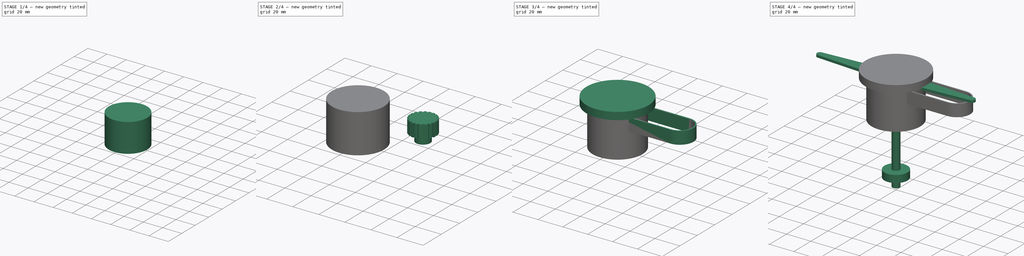
[diagram: build sequence overview — one tinted view per stage of 4, left to right]
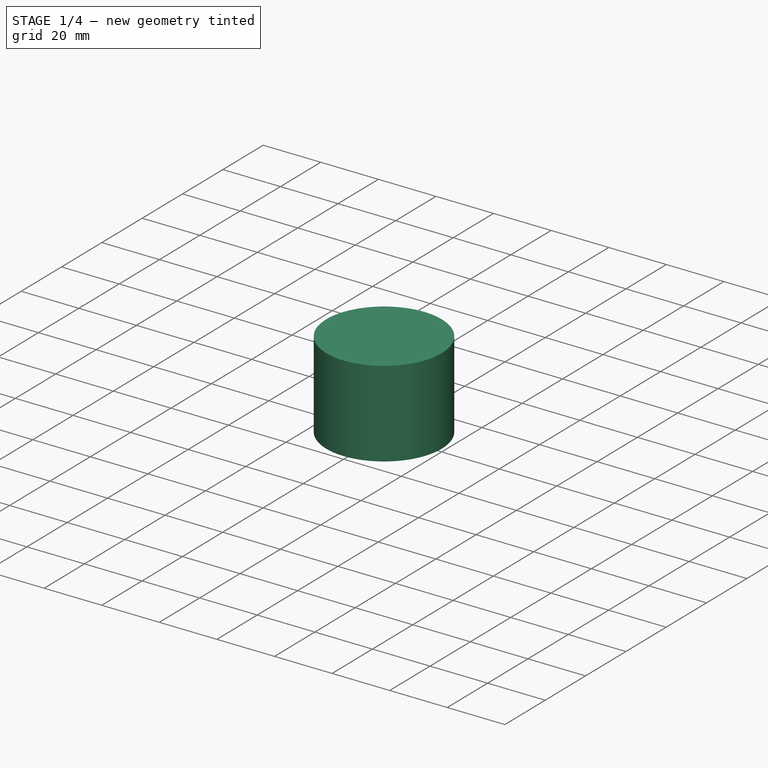
[diagram: stage 1 of 4 — iso view after this stage's code; geometry added in this stage tinted green]
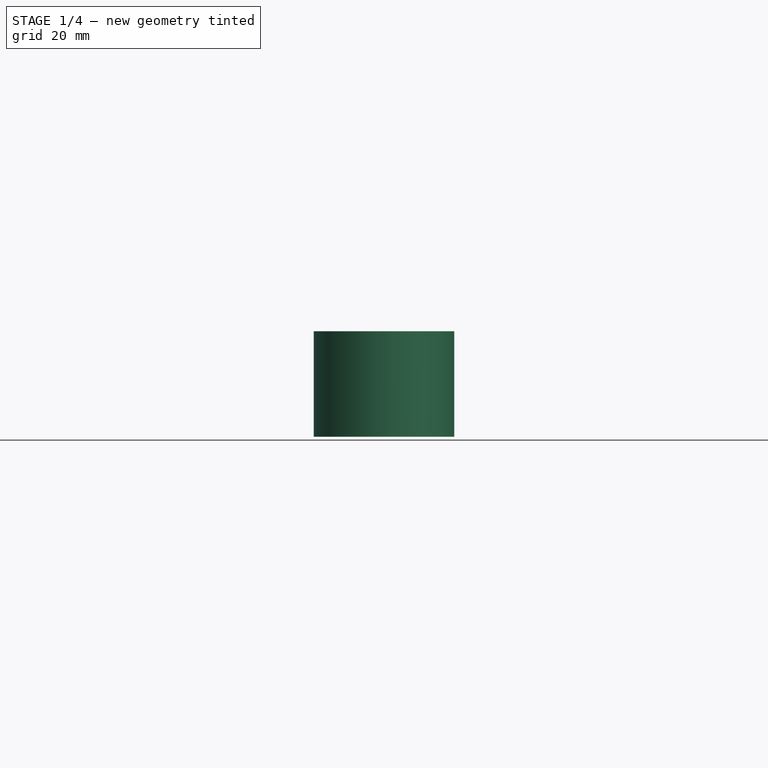
[diagram: stage 1 of 4 — front view after this stage's code; geometry added in this stage tinted green]
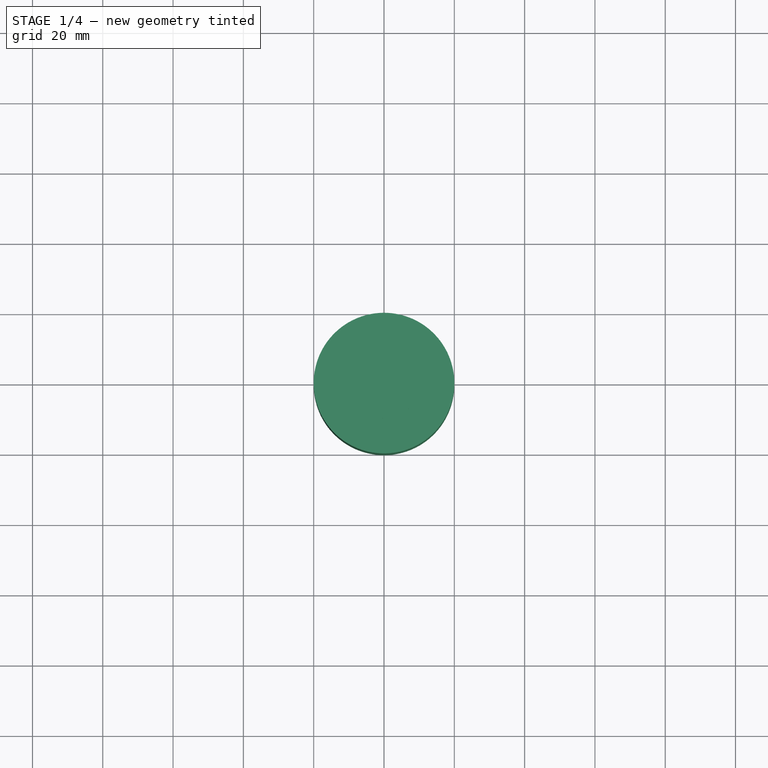
[diagram: stage 1 of 4 — top view after this stage's code; geometry added in this stage tinted green]
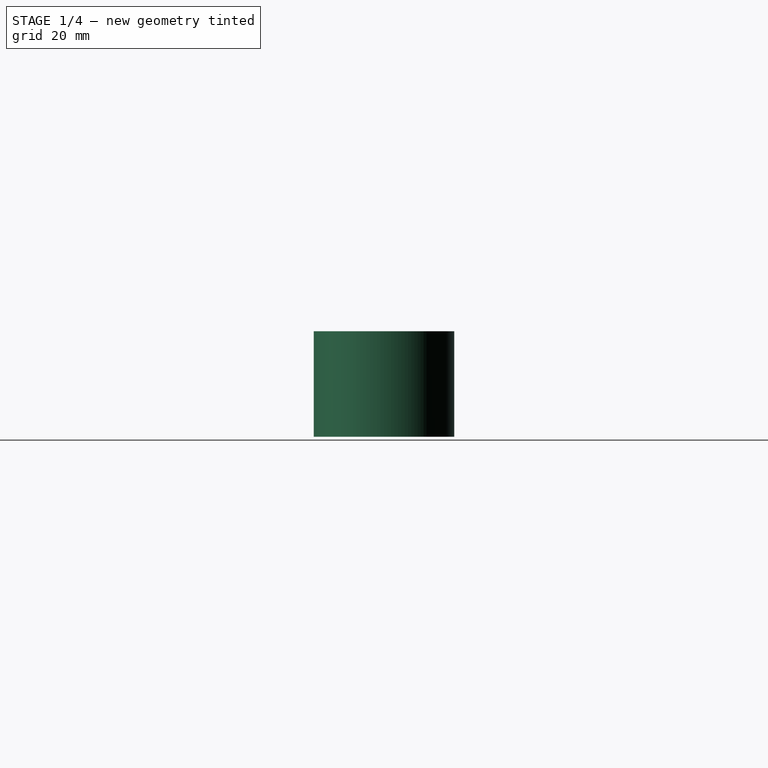
[diagram: stage 1 of 4 — right view after this stage's code; geometry added in this stage tinted green]
FCSTD DOCUMENT  (FreeCAD 0.18R13990 (Git))
Label: POV_mechanical_concept
License: All rights reserved
LicenseURL: http://en.wikipedia.org/wiki/All_rights_reserved
objects: Sketcher::SketchObject×9, PartDesign::Pad×8, PartDesign::Body×7, App::Part×7, PartDesign::ShapeBinder×3, PartDesign::FeatureBase×3, PartDesign::Pocket×1, PartDesign::PolarPattern×1, TechDraw::DrawSVGTemplate×1, TechDraw::DrawViewPart×1, TechDraw::DrawPage×1
note: 41 computed .brp shape members not serialized (recipe doc carries the construction recipe); baked Part::Feature solids carry a one-line shape summary decoded from their .brp

FEATURE [App::Part] Part003  label="power_transmission"
  Group = -> [Body003,Clone001]
  License = CC BY 3.0
  LicenseURL = http://creativecommons.org/licenses/by/3.0/
  Origin = -> Origin006
  Placement = pos=(0,0,-81) rot=(0,0,1;0rad)
FEATURE [Sketcher::SketchObject] Sketch004
  MapMode = 5
  Support = -> [XY_Plane009]
  sketch-geometry (1):
    g0: Circle CenterX=0 CenterY=0 CenterZ=0 NormalX=0 NormalY=0 NormalZ=1 AngleXU=0 Radius=10
  constraints (2):
    c: Coincident(g0,g-1)
    c: Radius(g0) = 10
FEATURE [PartDesign::Pad] Pad004
  Length = 10
  Length2 = 100
  Profile = -> Sketch004
  Reversed = true
  Type = 0
FEATURE [Sketcher::SketchObject] Sketch005
  MapMode = 11
  Placement = pos=(0,0,-10) rot=(0,0,1;1.5708rad)
  Support = -> [Pad004]
  sketch-geometry (1):
    g0: Circle CenterX=0 CenterY=0 CenterZ=0 NormalX=0 NormalY=0 NormalZ=1 AngleXU=0 Radius=5.5
  constraints (2):
    c: Coincident(g0,g-1)
    c: Radius(g0) = 5.5
FEATURE [PartDesign::Pad] Pad005
  BaseFeature = -> Pad004
  Length = 6
  Length2 = 100
  Profile = -> Sketch005
  Reversed = true
  Type = 0
FEATURE [PartDesign::Body] Body005  label="belt_Body"
  Group = -> [Sketch007,ShapeBinder001,ShapeBinder002,Pad006]
  Origin = -> Origin010
  Tip = -> Pad006
FEATURE [App::Part] Part004  label="pully"
  Group = -> [Body004,Clone002,Body005]
  License = CC BY 3.0
  LicenseURL = http://creativecommons.org/licenses/by/3.0/
  Origin = -> Origin008
  Placement = pos=(0,0,-18) rot=(0,0,1;0rad)
FEATURE [Sketcher::SketchObject] Sketch008
  MapMode = 5
  Support = -> [XY_Plane012]
  sketch-geometry (1):
    g0: Circle CenterX=0 CenterY=0 CenterZ=0 NormalX=0 NormalY=0 NormalZ=1 AngleXU=0 Radius=20
  constraints (2):
    c: Coincident(g0,g-1)
    c: Radius(g0) = 20
FEATURE [PartDesign::Pad] Pad007
  Length = 30
  Length2 = 100
  Profile = -> Sketch008
  Reversed = true
  Type = 0
FEATURE [PartDesign::Body] Body006  label="temp_irthing_Body"
  Group = -> [Sketch008,Pad007]
  Origin = -> Origin012
  Tip = -> Pad007
FEATURE [App::Part] Part005  label="data_transmission"
  Group = -> [Body006]
  License = CC BY 3.0
  LicenseURL = http://creativecommons.org/licenses/by/3.0/
  Origin = -> Origin011
  Placement = pos=(0,0,-35) rot=(0,0,1;0rad)
FEATURE [TechDraw::DrawSVGTemplate] Template
  EditableTexts = Designed_by_Name=Stefan Krüger; Drawing_number=1; FC-Date=29.06.2018; FC-SC=Scale; FC-SH=1; FC-Title=Ortogere; Subtitle=mechanical concept; Weight=-; extra_information_title=URL; extra_information_value=https://<owner>.github.io/ortogere/
  Height = 210
  Orientation = 1
  Width = 297
FEATURE [App::Part] Part006  label="mechanical_concept"
  Group = -> [Part,Part001,Part002,Part003,Part004,Part005]
  License = CC BY 3.0
  LicenseURL = http://creativecommons.org/licenses/by/3.0/
  Origin = -> Origin013
FEATURE [TechDraw::DrawViewPart] View
  CoarseView = false
  Direction = (0,1,0)
  Focus = 100
  HardHidden = false
  IsoCount = 0
  IsoHidden = false
  IsoVisible = false
  LockPosition = false
  Perspective = false
  Rotation = 0
  ScaleType = 0
  SeamHidden = false
  SeamVisible = false
  SmoothHidden = false
  SmoothVisible = false
  Source = -> [Part006]
  X = 148.5
  Y = 105
FEATURE [TechDraw::DrawPage] Page
  KeepUpdated = true
  ProjectionType = 0
  Template = -> Template
  Views = -> [View]
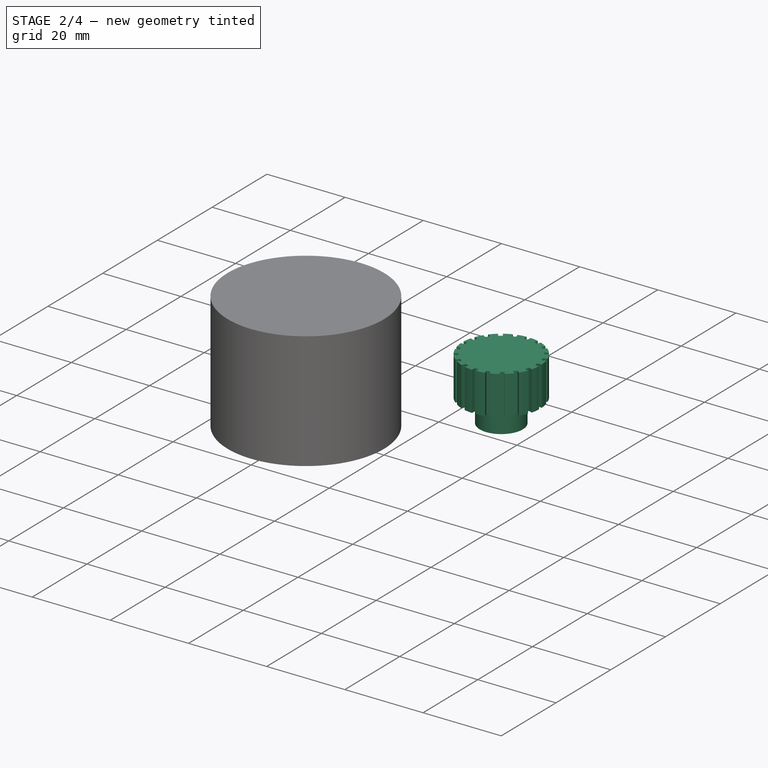
[diagram: stage 2 of 4 — iso view after this stage's code; geometry added in this stage tinted green]
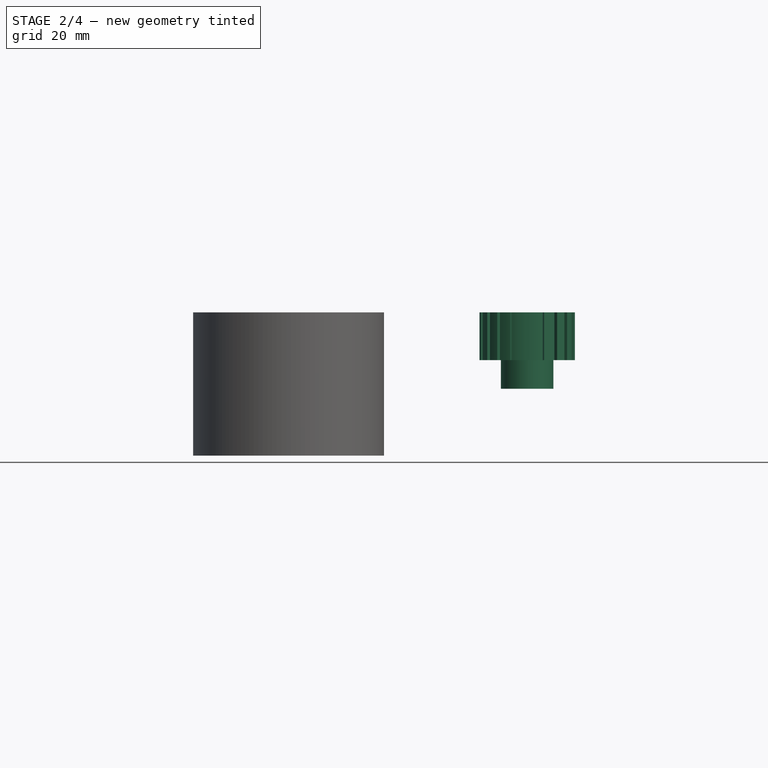
[diagram: stage 2 of 4 — front view after this stage's code; geometry added in this stage tinted green]
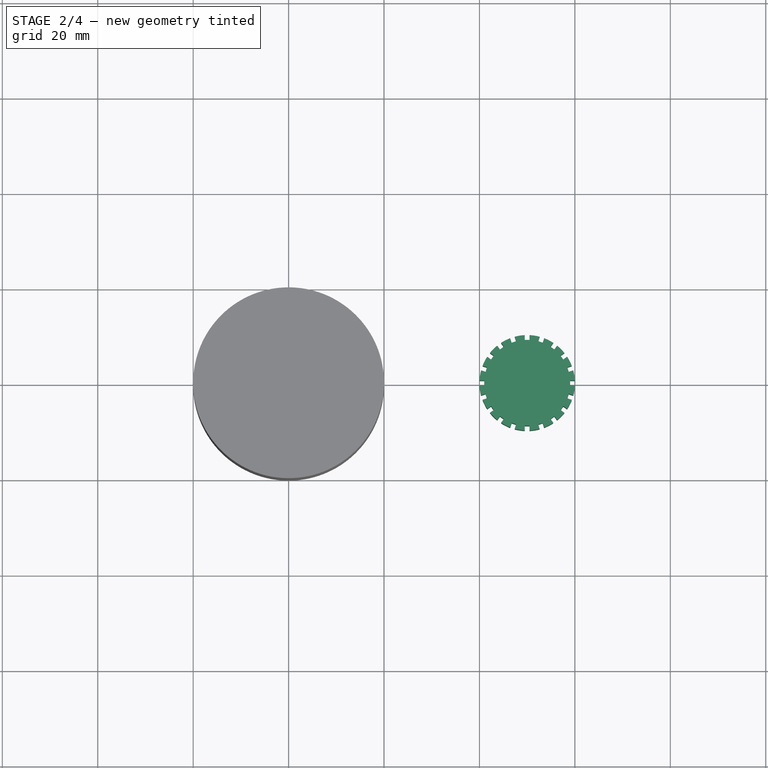
[diagram: stage 2 of 4 — top view after this stage's code; geometry added in this stage tinted green]
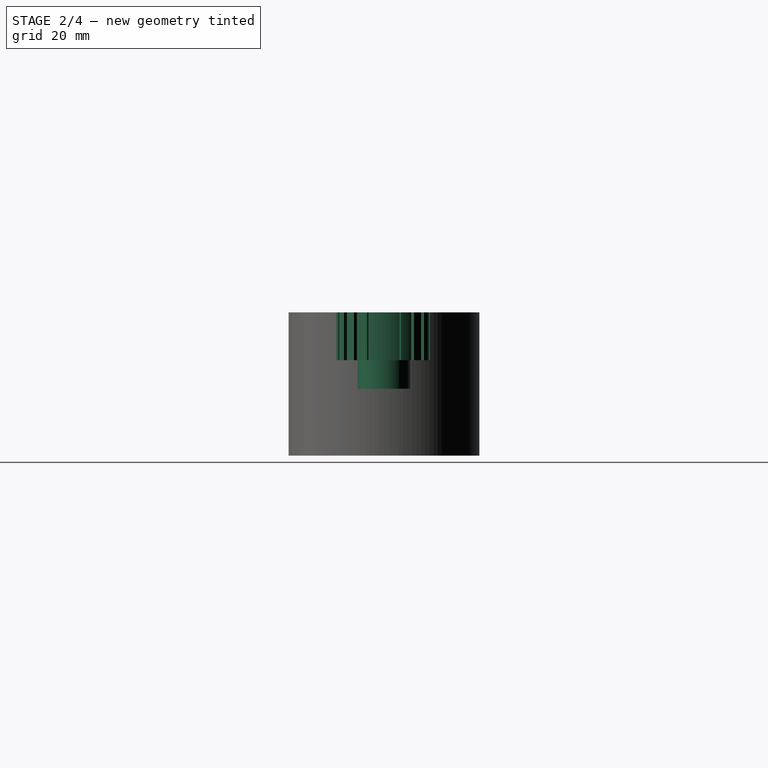
[diagram: stage 2 of 4 — right view after this stage's code; geometry added in this stage tinted green]
FEATURE [Sketcher::SketchObject] Sketch006
  ExternalGeometry = -> [Pad005]
  MapMode = 5
  Support = -> [XY_Plane009]
  sketch-geometry (6):
    g0: LineSegment StartX=-0.5 StartY=14 StartZ=0 EndX=0.5 EndY=14 EndZ=0
    g1: LineSegment StartX=0.5 StartY=14 StartZ=0 EndX=0.5 EndY=9 EndZ=0
    g2: LineSegment StartX=0.5 StartY=9 StartZ=0 EndX=-0.5 EndY=9 EndZ=0
    g3: LineSegment StartX=-0.5 StartY=9 StartZ=0 EndX=-0.5 EndY=14 EndZ=0
    g4: LineSegment [constr] StartX=0 StartY=9 StartZ=0 EndX=0 EndY=0 EndZ=0
    g5: LineSegment [constr] StartX=0 StartY=10 StartZ=0 EndX=0 EndY=9 EndZ=0
  constraints (17):
    c: Coincident(g0,g1)
    c: Coincident(g1,g2)
    c: Coincident(g2,g3)
    c: Coincident(g3,g0)
    c: Horizontal(g0)
    c: Horizontal(g2)
    c: Vertical(g1)
    c: Vertical(g3)
    c: DistanceX(g0,g0) = 1
    c: Vertical(g4)
    c: Coincident(g4,g-1)
    c: Symmetric(g2,g2,g4)
    c: Coincident(g5,g4)
    c: PointOnObject(g5,g-3)
    c: DistanceY(g5,g5) = 1
    c: DistanceY(g1,g1) = 5
    c: Vertical(g5)
FEATURE [PartDesign::Pocket] Pocket
  BaseFeature = -> Pad005
  Length = 5
  Length2 = 100
  Profile = -> Sketch006
  Type = 1
FEATURE [PartDesign::PolarPattern] PolarPattern
  Angle = 360
  Axis = -> Sketch006 [N_Axis]
  BaseFeature = -> Pocket
  Occurrences = 20
  Originals = -> [Pocket]
FEATURE [PartDesign::Body] Body004  label="pully_axis"
  Group = -> [Sketch004,Pad004,Sketch005,Pad005,Sketch006,Pocket,PolarPattern]
  Origin = -> Origin009
  Tip = -> PolarPattern
FEATURE [PartDesign::FeatureBase] Clone002
  BaseFeature = -> Body004
  Placement = pos=(50,0,0) rot=(0,0,1;0rad)
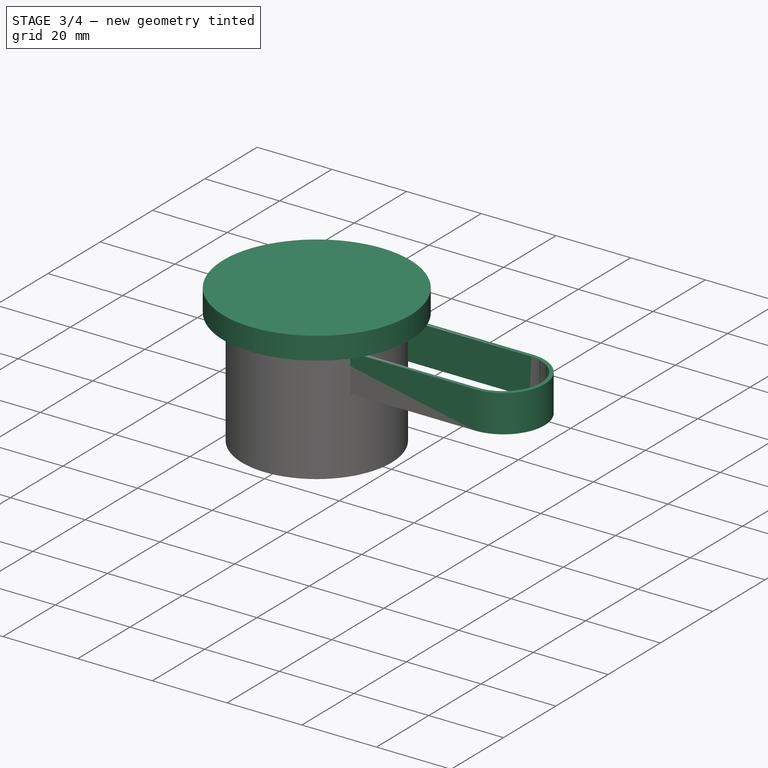
[diagram: stage 3 of 4 — iso view after this stage's code; geometry added in this stage tinted green]
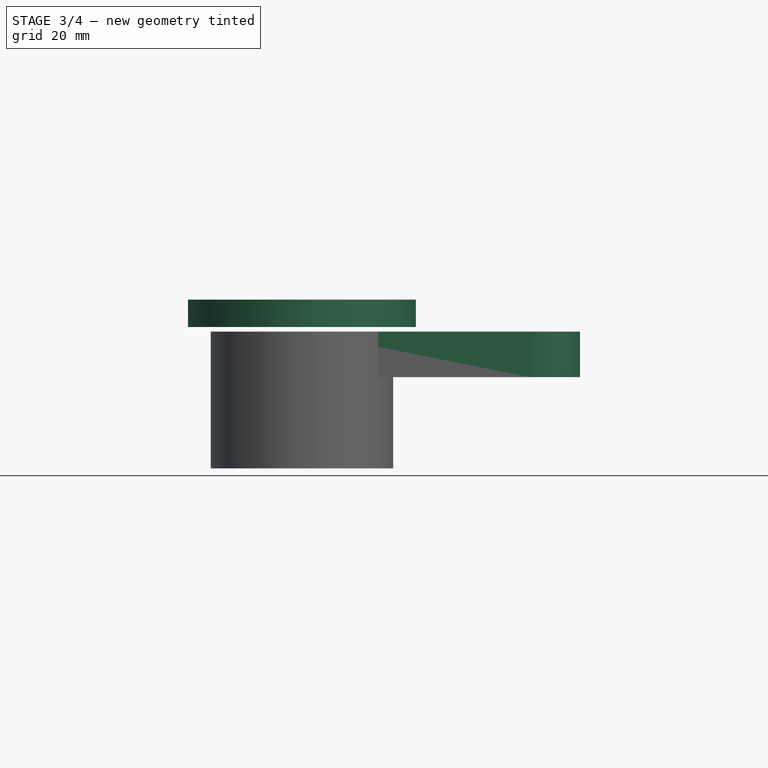
[diagram: stage 3 of 4 — front view after this stage's code; geometry added in this stage tinted green]
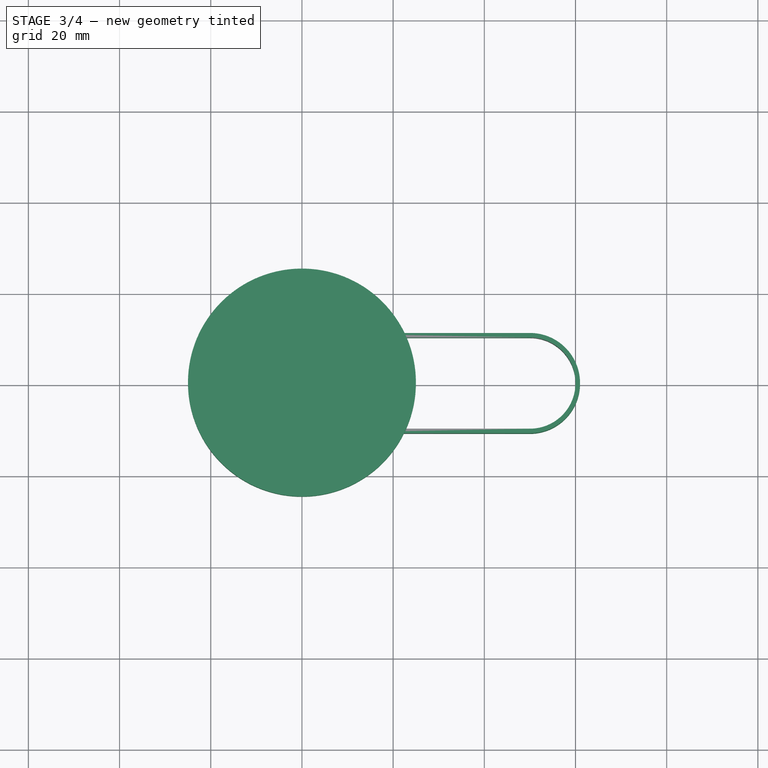
[diagram: stage 3 of 4 — top view after this stage's code; geometry added in this stage tinted green]
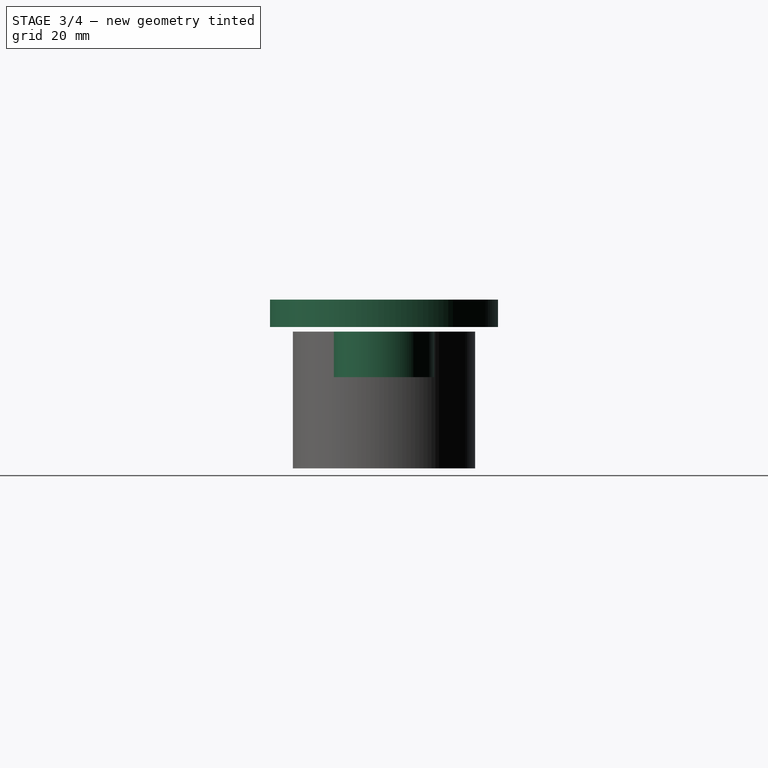
[diagram: stage 3 of 4 — right view after this stage's code; geometry added in this stage tinted green]
FEATURE [PartDesign::Body] Body001  label="needle_Body"
  Group = -> [Sketch001,Pad001,ShapeBinder]
  Origin = -> Origin003
  Tip = -> Pad001
FEATURE [App::Part] Part001  label="needle"
  Group = -> [Body001]
  License = CC BY 3.0
  LicenseURL = http://creativecommons.org/licenses/by/3.0/
  Origin = -> Origin002
FEATURE [Sketcher::SketchObject] Sketch002
  MapMode = 5
  Support = -> [XY_Plane005]
  sketch-geometry (2):
    g0: Circle CenterX=0 CenterY=0 CenterZ=0 NormalX=0 NormalY=0 NormalZ=1 AngleXU=0 Radius=3
    g1: Circle CenterX=0 CenterY=0 CenterZ=0 NormalX=0 NormalY=0 NormalZ=1 AngleXU=0 Radius=9.5
  constraints (4):
    c: Coincident(g0,g-1)
    c: Coincident(g1,g0)
    c: Radius(g0) = 3
    c: Radius(g1) = 9.5
FEATURE [PartDesign::Pad] Pad002
  Length = 6
  Length2 = 100
  Profile = -> Sketch002
  Reversed = true
  Type = 0
FEATURE [App::Part] Part002  label="ball_bearings"
  Group = -> [Body002,Clone]
  License = CC BY 3.0
  LicenseURL = http://creativecommons.org/licenses/by/3.0/
  Origin = -> Origin004
FEATURE [Sketcher::SketchObject] Sketch003
  MapMode = 5
  Support = -> [XY_Plane007]
  sketch-geometry (1):
    g0: Circle CenterX=0 CenterY=0 CenterZ=0 NormalX=0 NormalY=0 NormalZ=1 AngleXU=0 Radius=25
  constraints (2):
    c: Coincident(g0,g-1)
    c: Radius(g0) = 25
FEATURE [PartDesign::Pad] Pad003
  Length = 6
  Length2 = 100
  Profile = -> Sketch003
  Reversed = true
  Type = 0
FEATURE [PartDesign::Body] Body003  label="coil_rotating"
  Group = -> [Sketch003,Pad003]
  Origin = -> Origin007
  Tip = -> Pad003
FEATURE [PartDesign::FeatureBase] Clone001  label="coil_static_Clone"
  BaseFeature = -> Body003
  Placement = pos=(0,0,7) rot=(0,0,1;0rad)
FEATURE [PartDesign::ShapeBinder] ShapeBinder001
  Placement = pos=(50,0,0) rot=(0,0,1;0rad)
  Support = -> [Clone002]
FEATURE [PartDesign::ShapeBinder] ShapeBinder002
  Support = -> [PolarPattern]
FEATURE [Sketcher::SketchObject] Sketch007
  ExternalGeometry = -> [ShapeBinder001,ShapeBinder002]
  MapMode = 5
  Support = -> [XY_Plane010]
  sketch-geometry (8):
    g0: ArcOfCircle CenterX=0 CenterY=0 CenterZ=0 NormalX=0 NormalY=0 NormalZ=1 AngleXU=0 Radius=10 StartAngle=1.5708 EndAngle=4.71239
    g1: ArcOfCircle CenterX=50 CenterY=0 CenterZ=0 NormalX=0 NormalY=0 NormalZ=1 AngleXU=0 Radius=10 StartAngle=4.71239 EndAngle=7.85398
    g2: LineSegment StartX=0 StartY=-10 StartZ=0 EndX=50 EndY=-10 EndZ=0
    g3: LineSegment StartX=0 StartY=10 StartZ=0 EndX=50 EndY=10 EndZ=0
    g4: ArcOfCircle CenterX=0 CenterY=0 CenterZ=0 NormalX=0 NormalY=0 NormalZ=1 AngleXU=0 Radius=11 StartAngle=1.5708 EndAngle=4.71239
    g5: ArcOfCircle CenterX=50 CenterY=0 CenterZ=0 NormalX=0 NormalY=0 NormalZ=1 AngleXU=0 Radius=11 StartAngle=4.71239 EndAngle=7.85398
    g6: LineSegment StartX=0 StartY=-11 StartZ=0 EndX=50 EndY=-11 EndZ=0
    g7: LineSegment StartX=0 StartY=11 StartZ=0 EndX=50 EndY=11 EndZ=0
  constraints (17):
    c: Tangent(g0,g3) = 1.5708
    c: Tangent(g0,g2) = -1.5708
    c: Tangent(g2,g1) = -1.5708
    c: Tangent(g3,g1) = 1.5708
    c: Horizontal(g2)
    c: Equal(g0,g1)
    c: Coincident(g0,g-1)
    c: PointOnObject(g-8,g1)
    c: PointOnObject(g-7,g0)
    c: Tangent(g4,g7) = 1.5708
    c: Tangent(g4,g6) = -1.5708
    c: Tangent(g6,g5) = -1.5708
    c: Tangent(g7,g5) = 1.5708
    c: Horizontal(g6)
    c: Coincident(g4,g0)
    c: Coincident(g5,g1)
    c: DistanceY(g0,g4) = 1
FEATURE [PartDesign::Pad] Pad006
  Length = 10
  Length2 = 100
  Profile = -> Sketch007
  Reversed = true
  Type = 0
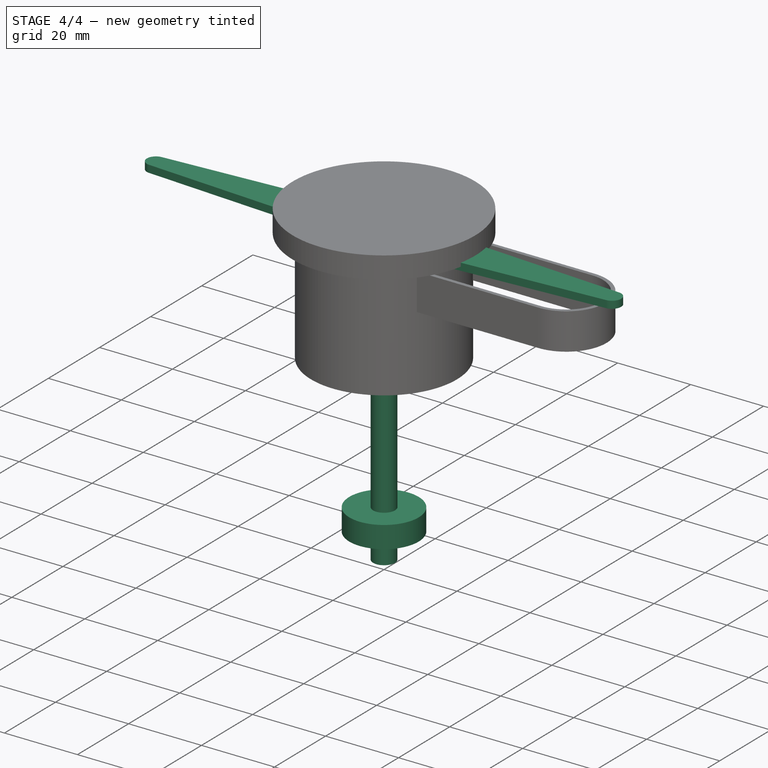
[diagram: stage 4 of 4 — iso view after this stage's code; geometry added in this stage tinted green]
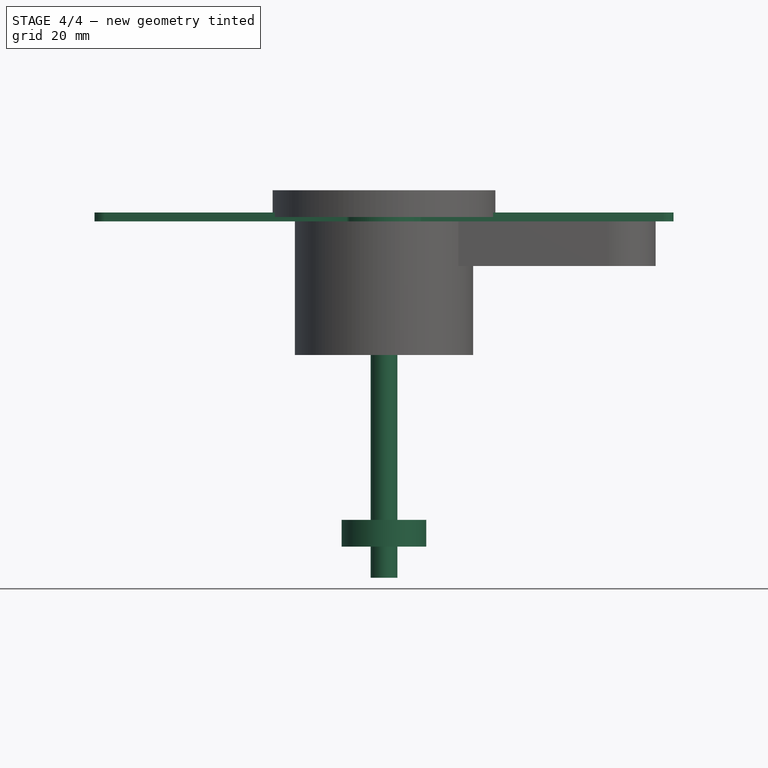
[diagram: stage 4 of 4 — front view after this stage's code; geometry added in this stage tinted green]
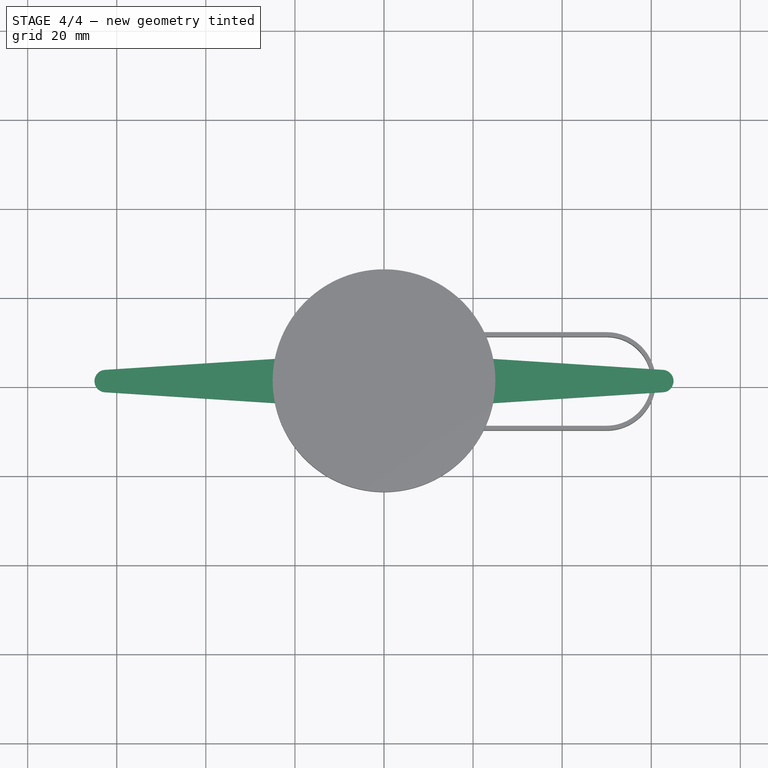
[diagram: stage 4 of 4 — top view after this stage's code; geometry added in this stage tinted green]
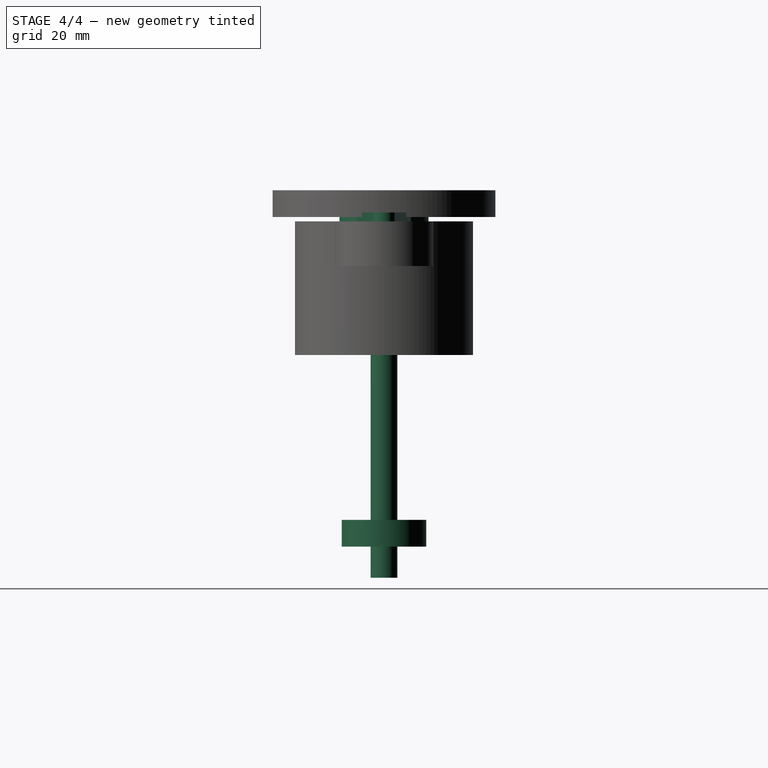
[diagram: stage 4 of 4 — right view after this stage's code; geometry added in this stage tinted green]
FEATURE [Sketcher::SketchObject] Sketch  label="axis_base_Sketch"
  MapMode = 5
  Support = -> [XY_Plane001]
  sketch-geometry (3):
    g0: Circle CenterX=0 CenterY=0 CenterZ=0 NormalX=0 NormalY=0 NormalZ=1 AngleXU=0 Radius=3
    g1: Circle CenterX=0 CenterY=0 CenterZ=0 NormalX=0 NormalY=0 NormalZ=1 AngleXU=0 Radius=1.5
    g2: LineSegment [constr] StartX=1.5 StartY=0 StartZ=0 EndX=3 EndY=0 EndZ=0
  constraints (8):
    c: Coincident(g0,g-1)
    c: Coincident(g1,g0)
    c: Horizontal(g2)
    c: PointOnObject(g2,g0)
    c: Perpendicular(g2,g1) = 1.5708
    c: DistanceX(g2,g2) = 1.5
    c: Radius(g0) = 3
    c: Radius(g1) = 1.5
FEATURE [PartDesign::Pad] Pad
  Length = 80
  Length2 = 100
  Profile = -> Sketch
  Reversed = true
  Type = 0
FEATURE [PartDesign::Body] Body  label="axis_Body"
  Group = -> [Sketch,Pad]
  Origin = -> Origin001
  Tip = -> Pad
FEATURE [App::Part] Part  label="axis"
  Group = -> [Body]
  License = CC BY 3.0
  LicenseURL = http://creativecommons.org/licenses/by/3.0/
  Origin = -> Origin
FEATURE [PartDesign::ShapeBinder] ShapeBinder
  Support = -> [Sketch]
FEATURE [Sketcher::SketchObject] Sketch001  label="needle_base_Sketch"
  ExternalGeometry = -> [ShapeBinder]
  MapMode = 5
  Support = -> [XY_Plane003]
  sketch-geometry (18):
    g0: LineSegment StartX=-8.42259 StartY=6 StartZ=0 EndX=-62.6561 EndY=2.5 EndZ=0
    g1: ArcOfCircle CenterX=-62.4948 CenterY=0 CenterZ=0 NormalX=0 NormalY=0 NormalZ=1 AngleXU=0 Radius=2.5052 StartAngle=1.63524 EndAngle=4.64794
    g2: LineSegment StartX=-62.6561 StartY=-2.5 StartZ=0 EndX=-8.42259 EndY=-6 EndZ=0
    g3: ArcOfCircle CenterX=0 CenterY=0 CenterZ=0 NormalX=0 NormalY=0 NormalZ=1 AngleXU=0 Radius=10 StartAngle=3.83112 EndAngle=5.59365
    g4: LineSegment StartX=8.42259 StartY=-6 StartZ=0 EndX=62.6561 EndY=-2.5 EndZ=0
    g5: ArcOfCircle CenterX=62.4948 CenterY=0 CenterZ=0 NormalX=0 NormalY=0 NormalZ=1 AngleXU=0 Radius=2.5052 StartAngle=4.77684 EndAngle=7.78954
    g6: LineSegment StartX=62.6561 StartY=2.5 StartZ=0 EndX=8.42259 EndY=6 EndZ=0
    g7: ArcOfCircle CenterX=0 CenterY=0 CenterZ=0 NormalX=0 NormalY=0 NormalZ=1 AngleXU=0 Radius=10 StartAngle=0.68953 EndAngle=2.45206
    g8: LineSegment [constr] StartX=8.42259 StartY=6 StartZ=0 EndX=8.42259 EndY=-6 EndZ=0
    g9: LineSegment [constr] StartX=-8.42259 StartY=6 StartZ=0 EndX=-8.42259 EndY=-6 EndZ=0
    g10: ArcOfCircle CenterX=-8.48699 CenterY=6.99792 CenterZ=0 NormalX=0 NormalY=0 NormalZ=1 AngleXU=0 Radius=1 StartAngle=4.77684 EndAngle=5.59365
    g11: ArcOfCircle CenterX=8.48699 CenterY=6.99792 CenterZ=0 NormalX=0 NormalY=0 NormalZ=1 AngleXU=0 Radius=1 StartAngle=3.83112 EndAngle=4.64794
    g12: ArcOfCircle CenterX=8.48699 CenterY=-6.99792 CenterZ=0 NormalX=0 NormalY=0 NormalZ=1 AngleXU=0 Radius=1 StartAngle=1.63524 EndAngle=2.45206
    g13: ArcOfCircle CenterX=-8.48699 CenterY=-6.99792 CenterZ=0 NormalX=0 NormalY=0 NormalZ=1 AngleXU=0 Radius=1 StartAngle=0.68953 EndAngle=1.50635
    g14: LineSegment [constr] StartX=-62.6561 StartY=2.5 StartZ=0 EndX=-62.6561 EndY=-2.5 EndZ=0
    g15: LineSegment [constr] StartX=62.6561 StartY=2.5 StartZ=0 EndX=62.6561 EndY=-2.5 EndZ=0
    g16: LineSegment [constr] StartX=-65 StartY=0 StartZ=0 EndX=65 EndY=0 EndZ=0
    g17: Circle CenterX=0 CenterY=0 CenterZ=0 NormalX=0 NormalY=0 NormalZ=1 AngleXU=0 Radius=1.5
  constraints (44):
    c: Tangent(g0,g1) = -1.5708
    c: Tangent(g1,g2) = -1.5708
    c: Tangent(g4,g5) = -1.5708
    c: Tangent(g5,g6) = -1.5708
    c: Symmetric(g1,g5,g-1)
    c: Radius(g1) = 2.5052
    c: Equal(g1,g5)
    c: Radius(g7) = 10
    c: Equal(g7,g3)
    c: Coincident(g7,g-1)
    c: Coincident(g3,g7)
    c: Vertical(g8)
    c: Vertical(g9)
    c: Radius(g10) = 1
    c: Equal(g10,g13)
    c: Equal(g10,g12)
    c: Equal(g10,g11)
    c: Tangent(g0,g10) = 1.5708
    c: Tangent(g7,g10) = 1.5708
    c: Tangent(g7,g11) = 1.5708
    c: Tangent(g11,g6) = 1.5708
    c: Tangent(g12,g4) = 1.5708
    c: Tangent(g3,g12) = 1.5708
    c: Tangent(g13,g3) = 1.5708
    c: Tangent(g2,g13) = 1.5708
    c: Coincident(g9,g0)
    c: Coincident(g2,g9)
    c: Coincident(g8,g4)
    c: Coincident(g8,g6)
    c: Equal(g9,g8)
    c: DistanceY(g9,g9) = 12
    c: Coincident(g14,g0)
    c: Coincident(g14,g1)
    c: Vertical(g14)
    c: Coincident(g15,g5)
    c: Coincident(g15,g4)
    c: DistanceY(g14,g14) = 5
    c: Horizontal(g16)
    c: PointOnObject(g16,g5)
    c: PointOnObject(g16,g1)
    c: Perpendicular(g1,g16)
    c: DistanceX(g16,g16) = 130
    c: Coincident(g17,g3)
    c: Equal(g17,g-3)
FEATURE [PartDesign::Pad] Pad001
  Length = 2
  Length2 = 100
  Profile = -> Sketch001
  Type = 0
FEATURE [PartDesign::Body] Body002  label="ball_bearing_Body"
  Group = -> [Sketch002,Pad002]
  Origin = -> Origin005
  Placement = pos=(0,0,-10) rot=(0,0,1;0rad)
  Tip = -> Pad002
FEATURE [PartDesign::FeatureBase] Clone  label="ball_bearing_Clone"
  BaseFeature = -> Body002
  Placement = pos=(0,0,-67) rot=(0,0,1;0rad)
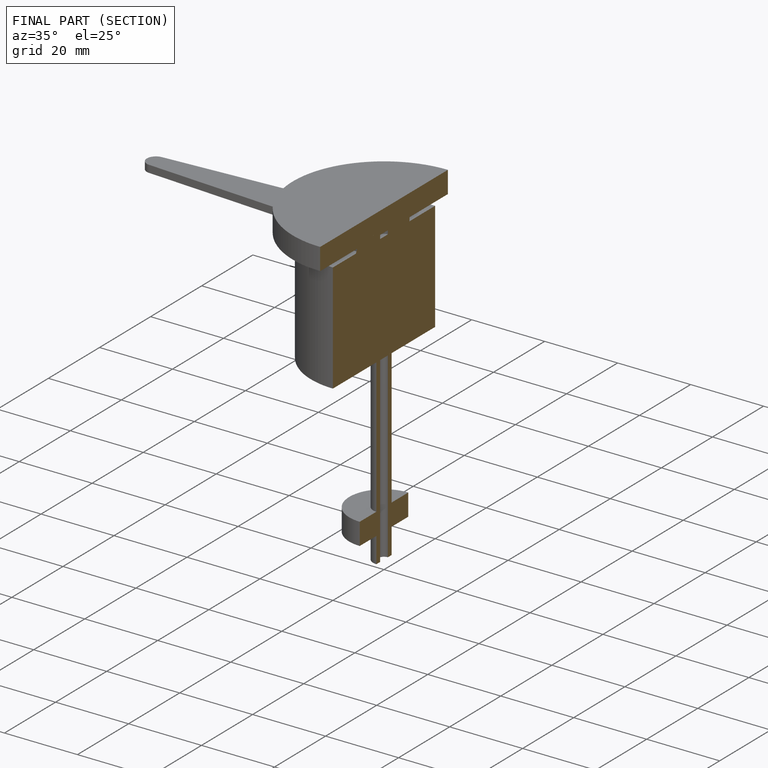
[diagram: finished part — half-section view (interior)]
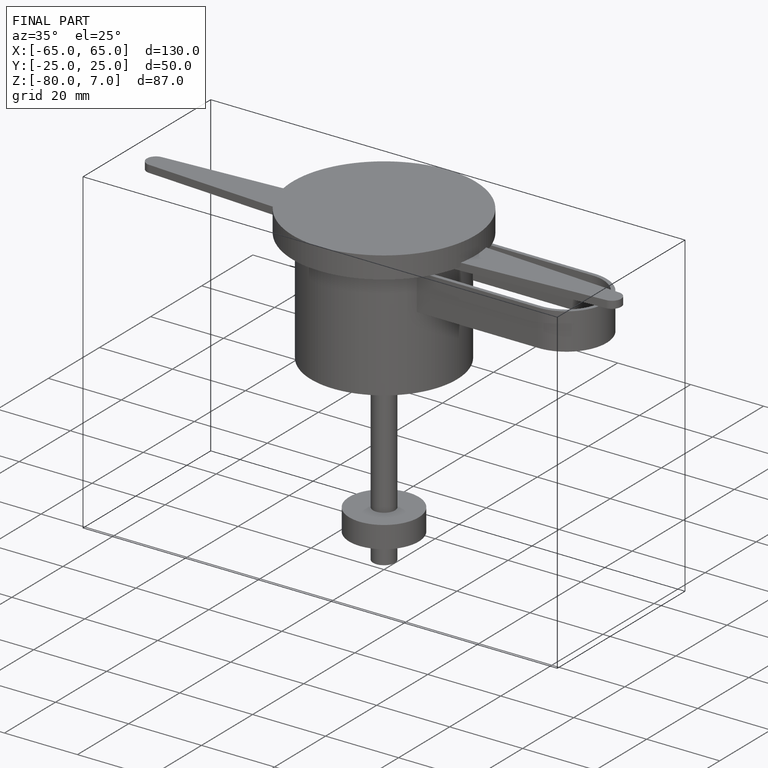
[diagram: finished part — iso view with bounding-box wireframe]
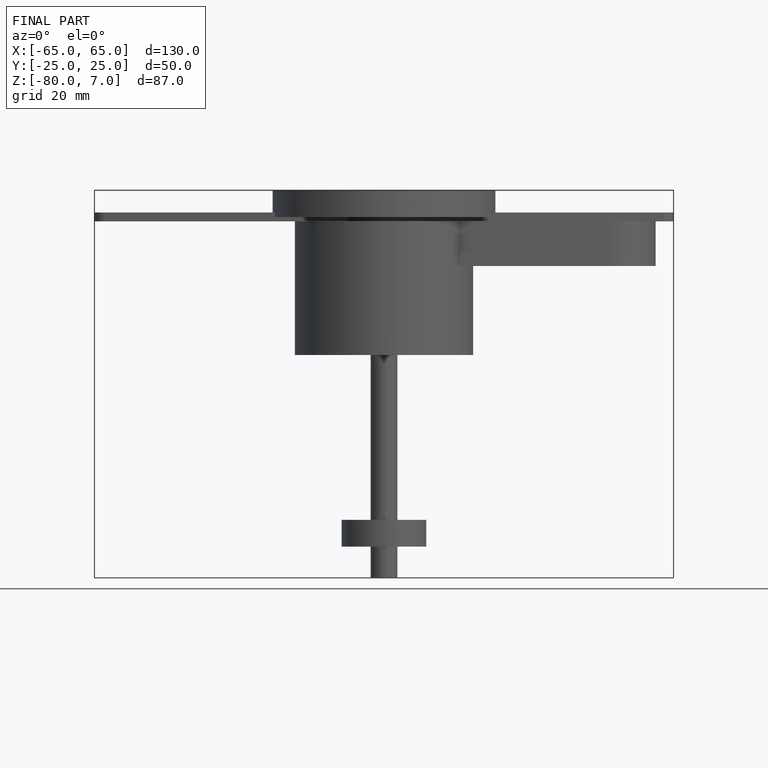
[diagram: finished part — front view with bounding-box wireframe]
